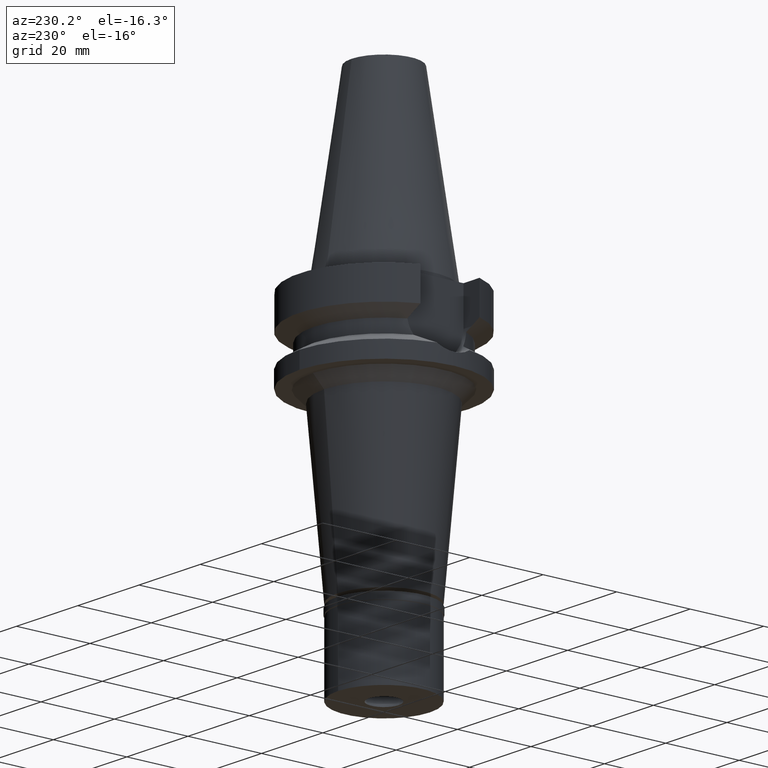
[diagram: clean part render]
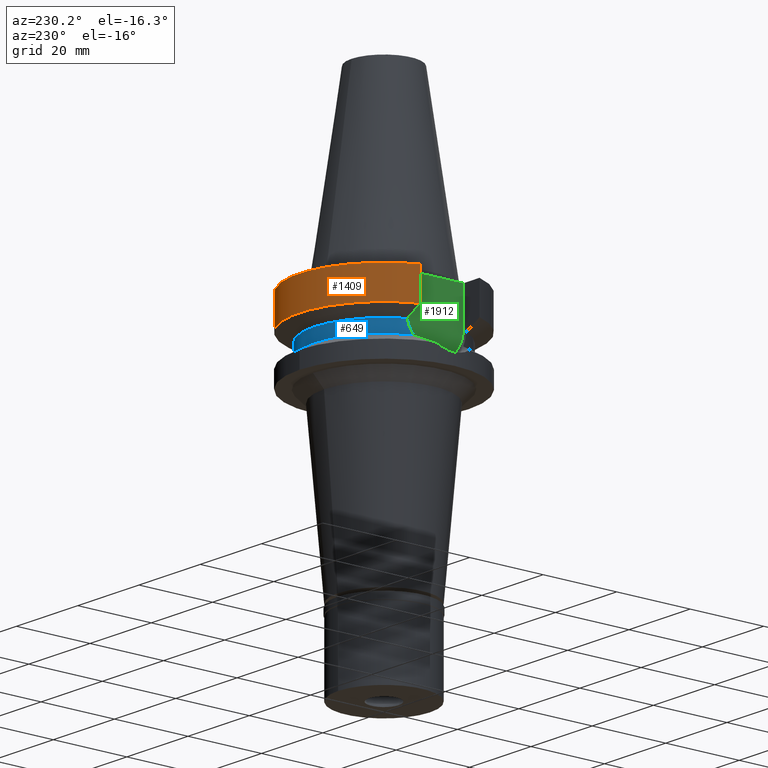
[diagram: same view with three faces highlighted in distinct colors, each labeled with its STEP entity id]
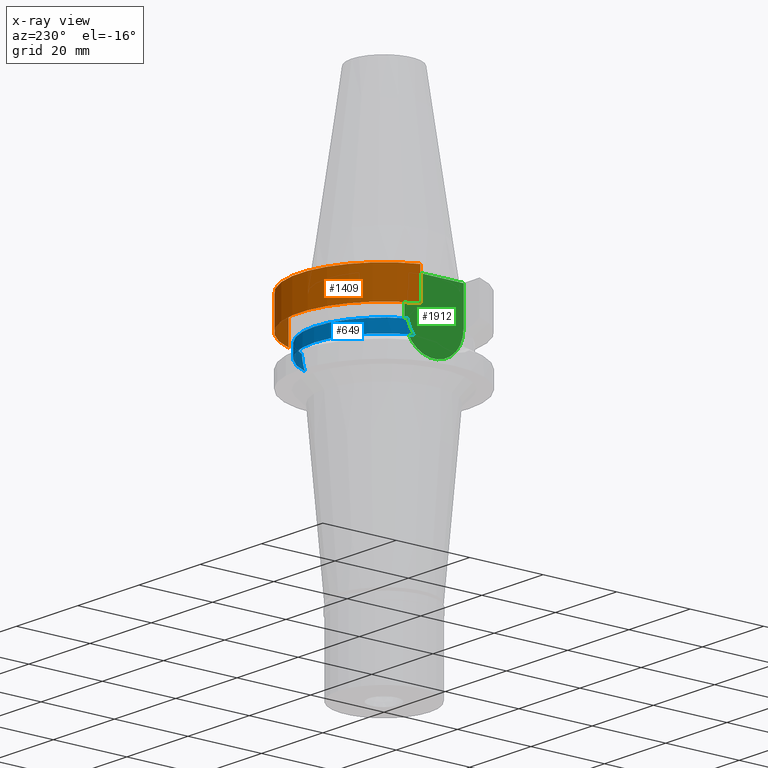
[diagram: x-ray of the same camera — body ghosted, the three highlighted faces saturated]
A machine part, auxiliary view with three faces highlighted in distinct colors.
The next image is the same camera in x-ray (body ghosted, the three faces saturated) — at least one of them is partly hidden behind the body in this view.
Their STEP definitions:

[orange] entity #1409 — the highlighted cylindrical surface (partial cylindrical patch) has radius 23 mm, axis along (0, 0, -1).
#27 = CARTESIAN_POINT ( 'NONE',  ( -21.54524309446999908, 8.050000000000000711, -1.000000000000000000 ) ) ;
#40 = EDGE_CURVE ( 'NONE', #760, #1295, #2074, .T. ) ;
#76 = VERTEX_POINT ( 'NONE', #2739 ) ;
#166 = EDGE_CURVE ( 'NONE', #1808, #76, #1279, .T. ) ;
#194 = EDGE_LOOP ( 'NONE', ( #773, #1301, #1554, #2679 ) ) ;
#441 = DIRECTION ( 'NONE',  ( 0.0000000000000000000, -1.000000000000000000, 0.0000000000000000000 ) ) ;
#461 = EDGE_CURVE ( 'NONE', #1808, #1295, #2160, .T. ) ;
#469 = DIRECTION ( 'NONE',  ( 0.0000000000000000000, 0.0000000000000000000, -1.000000000000000000 ) ) ;
#485 = CARTESIAN_POINT ( 'NONE',  ( 21.54524325238000060, 8.049999577379001181, -9.567211146543000311 ) ) ;
#645 = CARTESIAN_POINT ( 'NONE',  ( 21.54524325238000060, 8.049999577379001181, -9.567211146543000311 ) ) ;
#760 = VERTEX_POINT ( 'NONE', #645 ) ;
#773 = ORIENTED_EDGE ( 'NONE', *, *, #166, .T. ) ;
#814 = CARTESIAN_POINT ( 'NONE',  ( -21.54524231189000005, 8.050002094537999753, -9.567194606710000215 ) ) ;
#967 = CARTESIAN_POINT ( 'NONE',  ( 0.0000000000000000000, 0.0000000000000000000, -1.000000000000000000 ) ) ;
#982 = DIRECTION ( 'NONE',  ( 9.134696492506688232E-08, 2.444834603156914366E-07, -0.9999999999999659162 ) ) ;
#1163 = CYLINDRICAL_SURFACE ( 'NONE', #1931, 23.00000000000000000 ) ;
#1165 = LINE ( 'NONE', #485, #2955 ) ;
#1279 = CIRCLE ( 'NONE', #1686, 23.00000000000000355 ) ;
#1295 = VERTEX_POINT ( 'NONE', #814 ) ;
#1301 = ORIENTED_EDGE ( 'NONE', *, *, #2139, .F. ) ;
#1409 = ADVANCED_FACE ( 'NONE', ( #2141 ), #1163, .T. ) ;
#1554 = ORIENTED_EDGE ( 'NONE', *, *, #40, .T. ) ;
#1583 = CARTESIAN_POINT ( 'NONE',  ( -21.54524309446999908, 8.050000000000000711, -1.000000000000000000 ) ) ;
#1623 = CARTESIAN_POINT ( 'NONE',  ( 0.0000000000000000000, 0.0000000000000000000, 0.0000000000000000000 ) ) ;
#1686 = AXIS2_PLACEMENT_3D ( 'NONE', #967, #1940, #2860 ) ;
#1689 = VECTOR ( 'NONE', #982, 1000.000000000000114 ) ;
#1727 = AXIS2_PLACEMENT_3D ( 'NONE', #2581, #1853, #2537 ) ;
#1808 = VERTEX_POINT ( 'NONE', #1583 ) ;
#1853 = DIRECTION ( 'NONE',  ( 0.0000000000000000000, 0.0000000000000000000, 1.000000000000000000 ) ) ;
#1931 = AXIS2_PLACEMENT_3D ( 'NONE', #1623, #469, #441 ) ;
#1940 = DIRECTION ( 'NONE',  ( 0.0000000000000000000, 0.0000000000000000000, -1.000000000000000000 ) ) ;
#2074 = CIRCLE ( 'NONE', #1727, 23.00000000000000000 ) ;
#2139 = EDGE_CURVE ( 'NONE', #760, #76, #1165, .T. ) ;
#2141 = FACE_OUTER_BOUND ( 'NONE', #194, .T. ) ;
#2160 = LINE ( 'NONE', #27, #1689 ) ;
#2537 = DIRECTION ( 'NONE',  ( 0.0000000000000000000, 1.000000000000000000, 0.0000000000000000000 ) ) ;
#2581 = CARTESIAN_POINT ( 'NONE',  ( 0.0000000000000000000, 0.0000000000000000000, -9.567208369710998639 ) ) ;
#2679 = ORIENTED_EDGE ( 'NONE', *, *, #461, .F. ) ;
#2739 = CARTESIAN_POINT ( 'NONE',  ( 21.54524309446999908, 8.050000000000000711, -1.000000000000000000 ) ) ;
#2829 = DIRECTION ( 'NONE',  ( -1.843134610276992765E-08, 4.933012972513982769E-08, 0.9999999999999985567 ) ) ;
#2860 = DIRECTION ( 'NONE',  ( -0.9367496997597649644, 0.3499999999999864886, 0.0000000000000000000 ) ) ;
#2955 = VECTOR ( 'NONE', #2829, 1000.000000000000114 ) ;

[blue] entity #649 — the highlighted cylindrical surface (partial cylindrical patch) has radius 19 mm, axis along (0, 0, -1).
#52 = CARTESIAN_POINT ( 'NONE',  ( 17.45719485019988326, 7.500152504452496594, -13.87559139654183049 ) ) ;
#119 = CARTESIAN_POINT ( 'NONE',  ( -17.50089324257146117, 7.400132241380398490, -14.16652618107081274 ) ) ;
#133 = CARTESIAN_POINT ( 'NONE',  ( -17.75736593456000278, 6.758398853743999624, -15.32339055352999857 ) ) ;
#159 = CARTESIAN_POINT ( 'NONE',  ( 0.0000000000000000000, 0.0000000000000000000, 0.0000000000000000000 ) ) ;
#171 = CARTESIAN_POINT ( 'NONE',  ( -17.36642093039535339, 7.707968393402897966, -13.27287129784068753 ) ) ;
#368 = DIRECTION ( 'NONE',  ( 0.0000000000000000000, 0.0000000000000000000, -1.000000000000000000 ) ) ;
#395 = CARTESIAN_POINT ( 'NONE',  ( 0.0000000000000000000, 0.0000000000000000000, -11.87660944646999894 ) ) ;
#410 = CARTESIAN_POINT ( 'NONE',  ( 17.26628505399758495, 7.929743580512711887, -12.45264544716438415 ) ) ;
#527 = ORIENTED_EDGE ( 'NONE', *, *, #2558, .T. ) ;
#589 = CARTESIAN_POINT ( 'NONE',  ( 17.42527060183126508, 7.573803216217060097, -13.67765101994904242 ) ) ;
#634 = CIRCLE ( 'NONE', #1735, 19.00000000000000000 ) ;
#649 = ADVANCED_FACE ( 'NONE', ( #2723 ), #2768, .T. ) ;
#797 = CARTESIAN_POINT ( 'NONE',  ( 17.68527465920388053, 6.947815191080798591, -15.03067689316391053 ) ) ;
#914 = B_SPLINE_CURVE_WITH_KNOTS ( 'NONE', 3,
 ( #2715, #1093, #1306, #1783, #1768, #171, #1046, #2239, #2687, #2512, #1813, #1352, #119, #1064, #1588 ),
 .UNSPECIFIED., .F., .F.,
 ( 4, 2, 2, 1, 1, 1, 2, 2, 4 ),
 ( 0.0000000000000000000, 0.2499999999999867883, 0.3749999999999795164, 0.4374999999999766298, 0.4687499999999757971, 0.4843749999999752975, 0.4921874999999756306, 0.4999999999999760192, 1.000000000000000000 ),
 .UNSPECIFIED. ) ;
#963 = EDGE_CURVE ( 'NONE', #1315, #1316, #914, .T. ) ;
#991 = VERTEX_POINT ( 'NONE', #2012 ) ;
#1046 = CARTESIAN_POINT ( 'NONE',  ( -17.38157969027216154, 7.673706922368618066, -13.38464177899255958 ) ) ;
#1064 = CARTESIAN_POINT ( 'NONE',  ( -17.61324625441655556, 7.137066339020047501, -14.73821850746818107 ) ) ;
#1065 = CARTESIAN_POINT ( 'NONE',  ( 17.32791110705143467, 7.797407455533519993, -13.04850004284895171 ) ) ;
#1093 = CARTESIAN_POINT ( 'NONE',  ( -17.25079871419868027, 7.963112078838461727, -12.16467957590973192 ) ) ;
#1188 = ORIENTED_EDGE ( 'NONE', *, *, #963, .F. ) ;
#1243 = EDGE_CURVE ( 'NONE', #2509, #991, #1731, .T. ) ;
#1288 = EDGE_CURVE ( 'NONE', #1315, #991, #634, .T. ) ;
#1306 = CARTESIAN_POINT ( 'NONE',  ( -17.27395869023589370, 7.913381086570426604, -12.45762310741786294 ) ) ;
#1315 = VERTEX_POINT ( 'NONE', #1544 ) ;
#1316 = VERTEX_POINT ( 'NONE', #133 ) ;
#1352 = CARTESIAN_POINT ( 'NONE',  ( -17.41904773740677825, 7.588114254793001834, -13.63758193189464762 ) ) ;
#1360 = DIRECTION ( 'NONE',  ( 0.0000000000000000000, 0.0000000000000000000, -1.000000000000000000 ) ) ;
#1544 = CARTESIAN_POINT ( 'NONE',  ( -17.23531135310999929, 7.996501749182001184, -11.87660739352000050 ) ) ;
#1559 = CIRCLE ( 'NONE', #2575, 19.00000000000000000 ) ;
#1588 = CARTESIAN_POINT ( 'NONE',  ( -17.75736593456000278, 6.758398853743999624, -15.32339055352999857 ) ) ;
#1589 = CARTESIAN_POINT ( 'NONE',  ( 17.42163631444921990, 7.582155995951247007, -13.65434988420318341 ) ) ;
#1659 = CARTESIAN_POINT ( 'NONE',  ( 0.0000000000000000000, 0.0000000000000000000, -15.32339055352999857 ) ) ;
#1704 = ORIENTED_EDGE ( 'NONE', *, *, #1243, .F. ) ;
#1714 = CARTESIAN_POINT ( 'NONE',  ( 17.51072787940476161, 7.374839633901839164, -14.18046796344787097 ) ) ;
#1731 = B_SPLINE_CURVE_WITH_KNOTS ( 'NONE', 3,
 ( #2905, #797, #2857, #1955, #1714, #2628, #52, #2043, #2700, #589, #2266, #1589, #1065, #410, #2730 ),
 .UNSPECIFIED., .F., .F.,
 ( 4, 2, 2, 1, 1, 1, 2, 2, 4 ),
 ( 0.0000000000000000000, 0.2500000000000179856, 0.3750000000000265898, 0.4375000000000311418, 0.4687500000000342504, 0.4843750000000355271, 0.4921875000000354716, 0.5000000000000354161, 1.000000000000000000 ),
 .UNSPECIFIED. ) ;
#1735 = AXIS2_PLACEMENT_3D ( 'NONE', #395, #368, #1800 ) ;
#1768 = CARTESIAN_POINT ( 'NONE',  ( -17.33754202594459670, 7.772916469808796691, -13.04959539756961284 ) ) ;
#1783 = CARTESIAN_POINT ( 'NONE',  ( -17.32020757671457289, 7.811447717704117721, -12.90110006596351333 ) ) ;
#1800 = DIRECTION ( 'NONE',  ( -0.9071218755693948310, 0.4208680349746975469, 0.0000000000000000000 ) ) ;
#1813 = CARTESIAN_POINT ( 'NONE',  ( -17.41742827800754867, 7.591831639630458817, -13.62706743624174166 ) ) ;
#1864 = CARTESIAN_POINT ( 'NONE',  ( 17.75736593456000278, 6.758398853743999624, -15.32339055352999857 ) ) ;
#1955 = CARTESIAN_POINT ( 'NONE',  ( 17.53683850606634209, 7.312769253933304014, -14.31902480997234761 ) ) ;
#2012 = CARTESIAN_POINT ( 'NONE',  ( 17.23531622902000038, 7.996491146276001771, -11.87660607782000000 ) ) ;
#2043 = CARTESIAN_POINT ( 'NONE',  ( 17.43825996245875132, 7.543902337195889984, -13.75966030956574926 ) ) ;
#2239 = CARTESIAN_POINT ( 'NONE',  ( -17.40052369851842329, 7.630541238287210426, -13.51516209371798460 ) ) ;
#2266 = CARTESIAN_POINT ( 'NONE',  ( 17.42272085241537027, 7.579664041000751418, -13.66132223650548383 ) ) ;
#2383 = DIRECTION ( 'NONE',  ( 0.0000000000000000000, 1.000000000000000000, 0.0000000000000000000 ) ) ;
#2502 = DIRECTION ( 'NONE',  ( 0.0000000000000000000, -1.000000000000000000, 0.0000000000000000000 ) ) ;
#2509 = VERTEX_POINT ( 'NONE', #1864 ) ;
#2512 = CARTESIAN_POINT ( 'NONE',  ( -17.41457213535451132, 7.598382994166886562, -13.60841561397676891 ) ) ;
#2558 = EDGE_CURVE ( 'NONE', #2509, #1316, #1559, .T. ) ;
#2575 = AXIS2_PLACEMENT_3D ( 'NONE', #1659, #2579, #2383 ) ;
#2579 = DIRECTION ( 'NONE',  ( 0.0000000000000000000, 0.0000000000000000000, 1.000000000000000000 ) ) ;
#2604 = EDGE_LOOP ( 'NONE', ( #2896, #1704, #527, #1188 ) ) ;
#2628 = CARTESIAN_POINT ( 'NONE',  ( 17.47454244271734680, 7.459747681865206204, -13.97656327293264766 ) ) ;
#2687 = CARTESIAN_POINT ( 'NONE',  ( -17.41031039973905692, 7.608152010482710281, -13.58043824496359875 ) ) ;
#2700 = CARTESIAN_POINT ( 'NONE',  ( 17.42911851113716537, 7.564954524543376913, -13.70217975904482799 ) ) ;
#2715 = CARTESIAN_POINT ( 'NONE',  ( -17.23531135310999929, 7.996501749182001184, -11.87660739352000050 ) ) ;
#2723 = FACE_OUTER_BOUND ( 'NONE', #2604, .T. ) ;
#2730 = CARTESIAN_POINT ( 'NONE',  ( 17.23531622902000038, 7.996491146276001771, -11.87660607782000000 ) ) ;
#2768 = CYLINDRICAL_SURFACE ( 'NONE', #2997, 19.00000000000000000 ) ;
#2857 = CARTESIAN_POINT ( 'NONE',  ( 17.62113139266094564, 7.108367418718804842, -14.74095000843098724 ) ) ;
#2896 = ORIENTED_EDGE ( 'NONE', *, *, #1288, .T. ) ;
#2905 = CARTESIAN_POINT ( 'NONE',  ( 17.75736593456000278, 6.758398853743999624, -15.32339055352999857 ) ) ;
#2997 = AXIS2_PLACEMENT_3D ( 'NONE', #159, #1360, #2502 ) ;

[green] entity #1912 — the highlighted planar face has unit normal (-1, 0, 0).
#110 = FACE_OUTER_BOUND ( 'NONE', #3034, .T. ) ;
#581 = ORIENTED_EDGE ( 'NONE', *, *, #2083, .T. ) ;
#664 = VERTEX_POINT ( 'NONE', #2088 ) ;
#753 = PLANE ( 'NONE',  #1842 ) ;
#879 = DIRECTION ( 'NONE',  ( 0.0000000000000000000, -1.000000000000000000, 0.0000000000000000000 ) ) ;
#1010 = CARTESIAN_POINT ( 'NONE',  ( -16.29999999999999716, 0.0000000000000000000, 0.0000000000000000000 ) ) ;
#1054 = DIRECTION ( 'NONE',  ( 0.0000000000000000000, 0.0000000000000000000, 1.000000000000000000 ) ) ;
#1060 = ORIENTED_EDGE ( 'NONE', *, *, #2985, .F. ) ;
#1067 = CARTESIAN_POINT ( 'NONE',  ( -16.29999999999999716, -8.050000000000000711, -10.94999999999999929 ) ) ;
#1082 = LINE ( 'NONE', #1580, #1943 ) ;
#1220 = CARTESIAN_POINT ( 'NONE',  ( -16.29999999999999716, 8.050000000000000711, -10.94999999999999929 ) ) ;
#1311 = VECTOR ( 'NONE', #2055, 1000.000000000000000 ) ;
#1442 = VERTEX_POINT ( 'NONE', #2600 ) ;
#1518 = DIRECTION ( 'NONE',  ( 0.0000000000000000000, 0.0000000000000000000, 1.000000000000000000 ) ) ;
#1529 = LINE ( 'NONE', #1220, #2479 ) ;
#1580 = CARTESIAN_POINT ( 'NONE',  ( -16.29999999999999716, -8.050000000000000711, -1.000000000000000000 ) ) ;
#1804 = DIRECTION ( 'NONE',  ( 0.0000000000000000000, 1.000000000000000000, 0.0000000000000000000 ) ) ;
#1842 = AXIS2_PLACEMENT_3D ( 'NONE', #1010, #2410, #1054 ) ;
#1863 = LINE ( 'NONE', #2740, #1311 ) ;
#1912 = ADVANCED_FACE ( 'NONE', ( #110 ), #753, .T. ) ;
#1943 = VECTOR ( 'NONE', #1804, 1000.000000000000000 ) ;
#2055 = DIRECTION ( 'NONE',  ( 0.0000000000000000000, 0.0000000000000000000, -1.000000000000000000 ) ) ;
#2067 = CARTESIAN_POINT ( 'NONE',  ( -16.29999999999999716, 0.0000000000000000000, -10.94999999999999929 ) ) ;
#2083 = EDGE_CURVE ( 'NONE', #2505, #1442, #1082, .T. ) ;
#2088 = CARTESIAN_POINT ( 'NONE',  ( -16.29999999999999716, 8.050000000000000711, -10.94999999999999929 ) ) ;
#2111 = ORIENTED_EDGE ( 'NONE', *, *, #2125, .F. ) ;
#2125 = EDGE_CURVE ( 'NONE', #2457, #664, #2706, .T. ) ;
#2144 = AXIS2_PLACEMENT_3D ( 'NONE', #2067, #2989, #879 ) ;
#2209 = ORIENTED_EDGE ( 'NONE', *, *, #2731, .F. ) ;
#2410 = DIRECTION ( 'NONE',  ( -1.000000000000000000, 0.0000000000000000000, 0.0000000000000000000 ) ) ;
#2457 = VERTEX_POINT ( 'NONE', #1067 ) ;
#2479 = VECTOR ( 'NONE', #1518, 1000.000000000000000 ) ;
#2505 = VERTEX_POINT ( 'NONE', #2821 ) ;
#2600 = CARTESIAN_POINT ( 'NONE',  ( -16.29999999999999716, 8.050000000000000711, -1.000000000000000000 ) ) ;
#2706 = CIRCLE ( 'NONE', #2144, 8.050000000000000711 ) ;
#2731 = EDGE_CURVE ( 'NONE', #664, #1442, #1529, .T. ) ;
#2740 = CARTESIAN_POINT ( 'NONE',  ( -16.29999999999999716, -8.050000000000000711, -1.000000000000000000 ) ) ;
#2821 = CARTESIAN_POINT ( 'NONE',  ( -16.29999999999999716, -8.050000000000000711, -1.000000000000000000 ) ) ;
#2985 = EDGE_CURVE ( 'NONE', #2505, #2457, #1863, .T. ) ;
#2989 = DIRECTION ( 'NONE',  ( 1.000000000000000000, 0.0000000000000000000, 0.0000000000000000000 ) ) ;
#3034 = EDGE_LOOP ( 'NONE', ( #2209, #2111, #1060, #581 ) ) ;